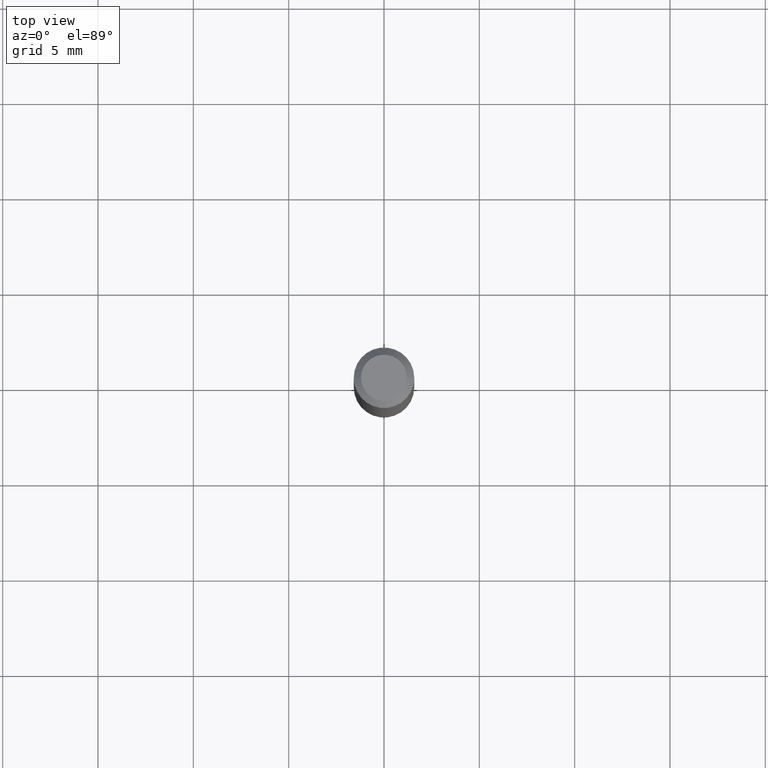
[diagram: clean part render]
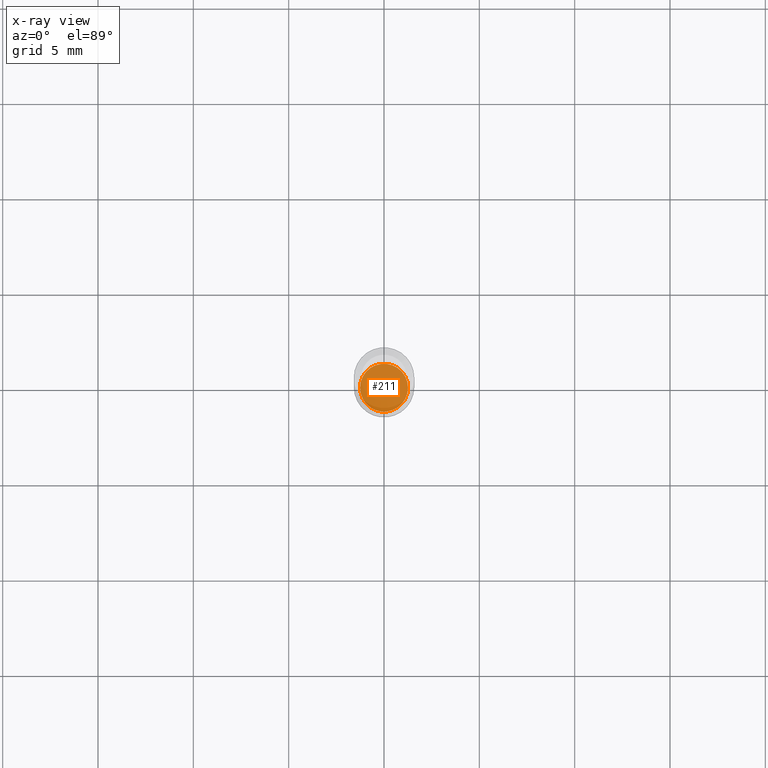
[diagram: x-ray — body ghosted, one internal face saturated and labeled with its STEP entity id]
A machine part, top view, then the same camera in x-ray: the body is ghosted and one INTERNAL B-rep face — a face not visible from any outside direction — is saturated and labeled: STEP entity #211.
In plain terms, the highlighted planar face has unit normal (-0, 0, 1).
Its self-contained STEP definition (entity closure, byte-faithful):
#2 = CIRCLE ( 'NONE', #382, 0.04950000000000000233 ) ;
#23 = ORIENTED_EDGE ( 'NONE', *, *, #92, .F. ) ;
#47 = AXIS2_PLACEMENT_3D ( 'NONE', #439, #299, #76 ) ;
#59 = AXIS2_PLACEMENT_3D ( 'NONE', #257, #259, #110 ) ;
#64 = FACE_OUTER_BOUND ( 'NONE', #402, .T. ) ;
#73 = CARTESIAN_POINT ( 'NONE',  ( 0.04950000000000000233, -4.535434259157245343E-15, -1.200000000000000178 ) ) ;
#75 = CARTESIAN_POINT ( 'NONE',  ( -0.04950000000000000233, -3.835409725236414304E-15, -1.200000000000000178 ) ) ;
#76 = DIRECTION ( 'NONE',  ( 1.000000000000000000, -6.982962677686265922E-15, 4.876176775795935793E-29 ) ) ;
#92 = EDGE_CURVE ( 'NONE', #100, #363, #2, .T. ) ;
#100 = VERTEX_POINT ( 'NONE', #75 ) ;
#110 = DIRECTION ( 'NONE',  ( 1.000000000000000000, -6.982962677686264344E-15, 0.000000000000000000 ) ) ;
#115 = DIRECTION ( 'NONE',  ( 1.000000000000000000, -6.982962677686264344E-15, 0.000000000000000000 ) ) ;
#162 = EDGE_CURVE ( 'NONE', #363, #100, #398, .T. ) ;
#180 = PLANE ( 'NONE',  #47 ) ;
#197 = CARTESIAN_POINT ( 'NONE',  ( 2.934562567422164701E-29, -4.189777606611775804E-15, -1.200000000000000178 ) ) ;
#211 = ADVANCED_FACE ( 'NONE', ( #64 ), #180, .F. ) ;
#255 = ORIENTED_EDGE ( 'NONE', *, *, #162, .F. ) ;
#257 = CARTESIAN_POINT ( 'NONE',  ( 2.934562567422164701E-29, -4.189777606611775804E-15, -1.200000000000000178 ) ) ;
#259 = DIRECTION ( 'NONE',  ( -2.445468806185136597E-29, 3.491481338843145583E-15, 1.000000000000000000 ) ) ;
#299 = DIRECTION ( 'NONE',  ( -2.438088387897960049E-29, 3.491481338843145188E-15, 1.000000000000000000 ) ) ;
#305 = DIRECTION ( 'NONE',  ( -2.445468806185136597E-29, 3.491481338843145583E-15, 1.000000000000000000 ) ) ;
#363 = VERTEX_POINT ( 'NONE', #73 ) ;
#382 = AXIS2_PLACEMENT_3D ( 'NONE', #197, #305, #115 ) ;
#398 = CIRCLE ( 'NONE', #59, 0.04950000000000000233 ) ;
#402 = EDGE_LOOP ( 'NONE', ( #255, #23 ) ) ;
#439 = CARTESIAN_POINT ( 'NONE',  ( 2.934562567422164701E-29, -4.189777606611775804E-15, -1.200000000000000178 ) ) ;